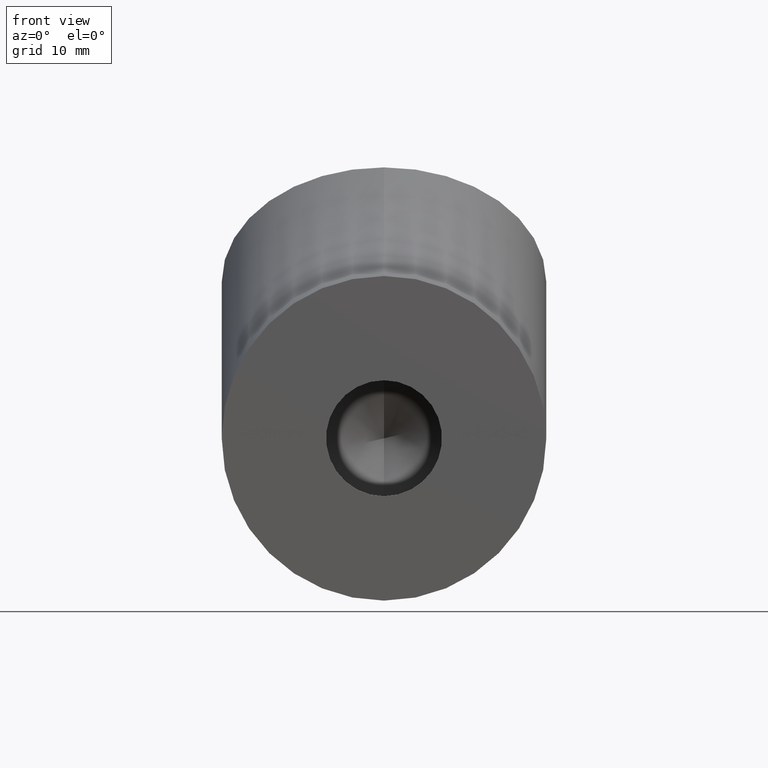
[diagram: clean part render]
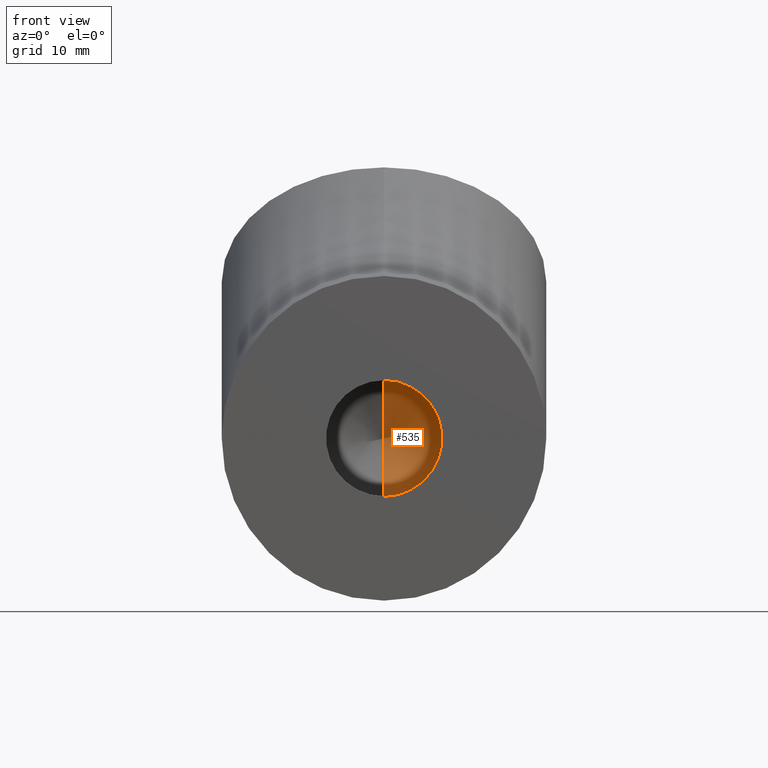
[diagram: same view with one face highlighted and labeled with its STEP entity id]
A machine part, front view. The second image highlights one B-rep face of the part: STEP entity #535.
In plain terms, the highlighted conical surface has half-angle 59 deg.
Its self-contained STEP definition (entity closure, byte-faithful):
#172 = CARTESIAN_POINT ( 'NONE',  ( 9.184850993605130195E-16, 23.99999999999999289, 7.499999999999984901 ) ) ;
#241 = DIRECTION ( 'NONE',  ( 1.049727191138617217E-16, -0.5150380749100562650, 0.8571673007021111124 ) ) ;
#272 = VECTOR ( 'NONE', #7095, 1000.000000000000000 ) ;
#535 = ADVANCED_FACE ( 'NONE', ( #1955 ), #7222, .F. ) ;
#675 = VECTOR ( 'NONE', #241, 1000.000000000000000 ) ;
#1095 = DIRECTION ( 'NONE',  ( 0.000000000000000000, 0.000000000000000000, -1.000000000000000000 ) ) ;
#1318 = EDGE_LOOP ( 'NONE', ( #7028, #8276, #2374 ) ) ;
#1955 = FACE_OUTER_BOUND ( 'NONE', #1318, .T. ) ;
#1979 = VERTEX_POINT ( 'NONE', #8856 ) ;
#2016 = EDGE_CURVE ( 'NONE', #3597, #1979, #5261, .T. ) ;
#2245 = AXIS2_PLACEMENT_3D ( 'NONE', #7430, #2970, #1095 ) ;
#2374 = ORIENTED_EDGE ( 'NONE', *, *, #9296, .T. ) ;
#2970 = DIRECTION ( 'NONE',  ( -0.000000000000000000, -1.000000000000000000, -0.000000000000000000 ) ) ;
#3597 = VERTEX_POINT ( 'NONE', #10167 ) ;
#3911 = EDGE_CURVE ( 'NONE', #3597, #7291, #7755, .T. ) ;
#3941 = CIRCLE ( 'NONE', #2245, 7.499999999999984901 ) ;
#4814 = AXIS2_PLACEMENT_3D ( 'NONE', #4993, #8619, #8508 ) ;
#4993 = CARTESIAN_POINT ( 'NONE',  ( 0.000000000000000000, 23.99999999999999289, 0.000000000000000000 ) ) ;
#5261 = LINE ( 'NONE', #9708, #272 ) ;
#6730 = CARTESIAN_POINT ( 'NONE',  ( 9.184850993605130195E-16, 23.99999999999999289, 7.499999999999984901 ) ) ;
#7028 = ORIENTED_EDGE ( 'NONE', *, *, #3911, .F. ) ;
#7095 = DIRECTION ( 'NONE',  ( 0.000000000000000000, -0.5150380749100562650, -0.8571673007021111124 ) ) ;
#7222 = CONICAL_SURFACE ( 'NONE', #4814, 7.499999999999984901, 1.029744258676652091 ) ;
#7291 = VERTEX_POINT ( 'NONE', #6730 ) ;
#7430 = CARTESIAN_POINT ( 'NONE',  ( 0.000000000000000000, 23.99999999999999289, 0.000000000000000000 ) ) ;
#7755 = LINE ( 'NONE', #172, #675 ) ;
#8276 = ORIENTED_EDGE ( 'NONE', *, *, #2016, .T. ) ;
#8508 = DIRECTION ( 'NONE',  ( 0.000000000000000000, 0.000000000000000000, -1.000000000000000000 ) ) ;
#8619 = DIRECTION ( 'NONE',  ( -0.000000000000000000, -1.000000000000000000, -0.000000000000000000 ) ) ;
#8856 = CARTESIAN_POINT ( 'NONE',  ( 0.000000000000000000, 23.99999999999999289, -7.499999999999984901 ) ) ;
#9296 = EDGE_CURVE ( 'NONE', #1979, #7291, #3941, .T. ) ;
#9708 = CARTESIAN_POINT ( 'NONE',  ( 0.000000000000000000, 23.99999999999999289, -7.499999999999984901 ) ) ;
#10167 = CARTESIAN_POINT ( 'NONE',  ( -6.599306943008635918E-15, 28.50645464270670715, 0.000000000000000000 ) ) ;